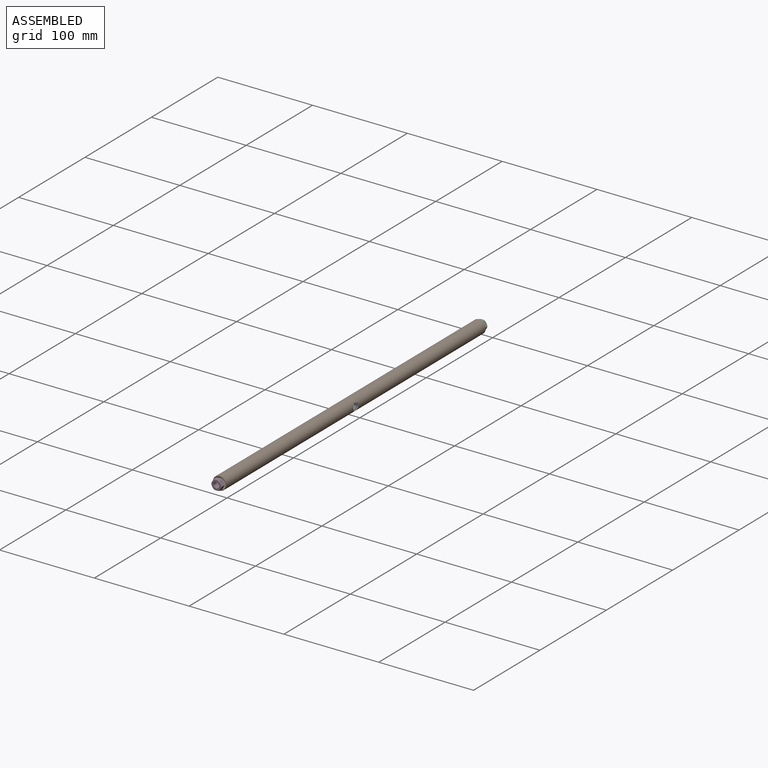
[diagram: assembled view]
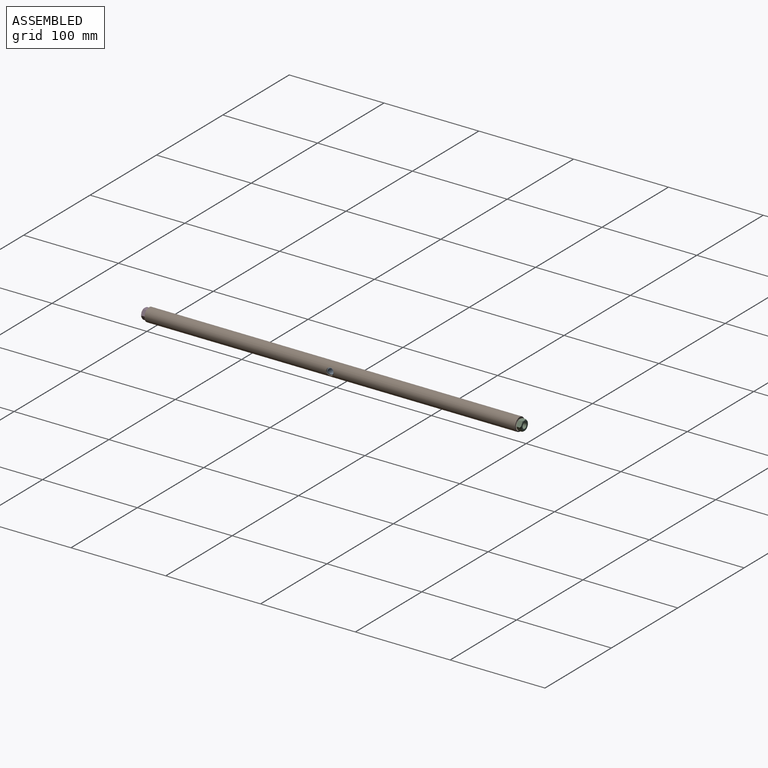
[diagram: assembled view, second angle]
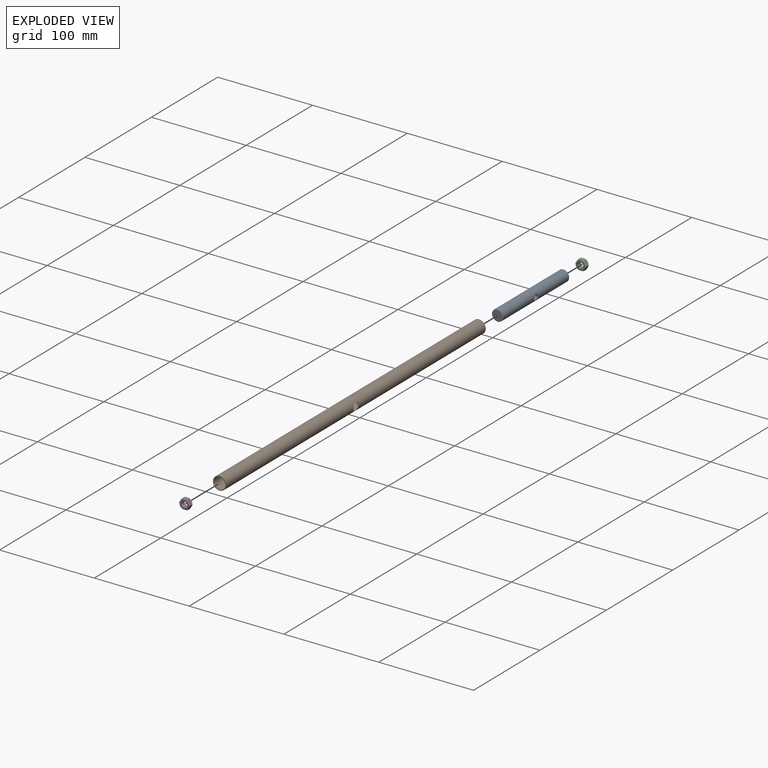
[diagram: exploded view]
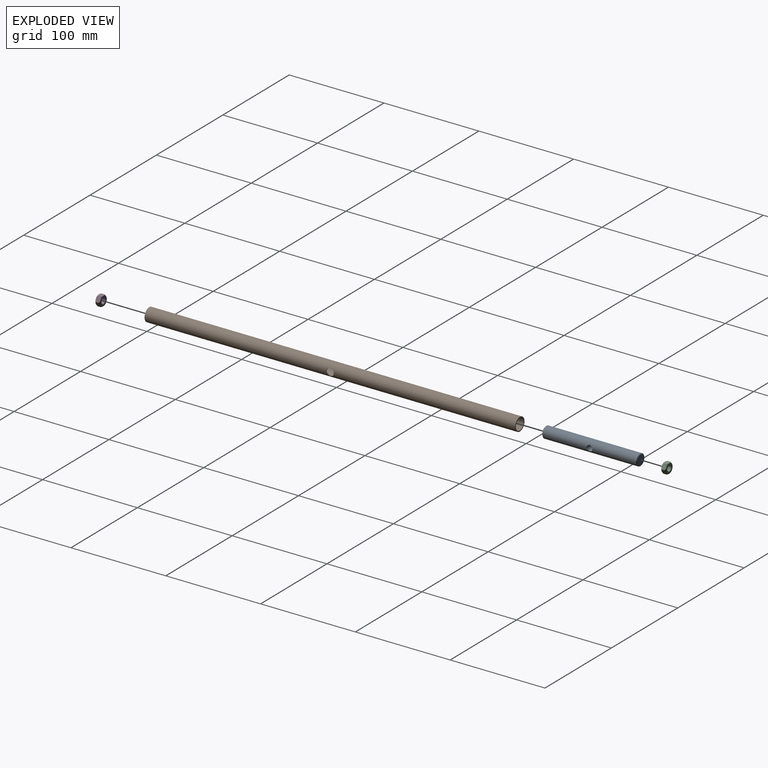
[diagram: exploded view, second angle]
ASSEMBLY  parts=4 mates=3
PART A: 6 faces, bbox 12x100x12 mm
  f0: cylinder r=6mm len=99mm, axis (0,1,0), area 3673.6mm2, adj f3,f4,f5
  f1: plane 11x11mm, normal (0,-1,0), area 95mm2, adj f5
  f2: plane 11x11mm, normal (0,1,0), area 95mm2, adj f4
  f3: cylinder r=3mm len=12mm, axis (1,0,0), area 211.3mm2, adj f0
  f4: cone r=6mm half-angle=45deg, axis (0,-1,0), area 25.5mm2, adj f0,f2
  f5: cone r=5.5mm half-angle=45deg, axis (0,1,0), area 25.5mm2, adj f0,f1
PART B: 6 faces, bbox 14x391x14 mm
  f0: cylinder r=6mm len=391mm, axis (0,1,0), area 14633mm2, adj f2,f3,f4,f5
  f1: cylinder r=7mm len=391mm, axis (0,1,0), area 17091.9mm2, adj f2,f3,f4,f5
  f2: plane 14x14mm, normal (0,-1,0), area 40.8mm2, adj f0,f1
  f3: plane 14x14mm, normal (0,1,0), area 40.8mm2, adj f0,f1
  f4: cylinder r=4mm len=8mm, axis (1,0,0), area 28.2mm2, adj f0,f1
  f5: cylinder r=4mm len=8mm, axis (1,0,0), area 28.3mm2, adj f0,f1
PART C: 21 faces, bbox 12.1x5.6x12.1 mm
  f0: plane 10x10mm, normal (0,1,0), area 50.3mm2, adj f1,f2,f3,f4,f5,f6,f7
  f1: cone r=5mm half-angle=45deg, axis (0,-1,0), area 3mm2, adj f0,f19,f20
  f2: cone r=5mm half-angle=45deg, axis (0,-1,0), area 3mm2, adj f0,f15,f20
  f3: cone r=5mm half-angle=45deg, axis (0,-1,0), area 3mm2, adj f0,f15,f16
  f4: cone r=5mm half-angle=45deg, axis (0,-1,0), area 3mm2, adj f0,f16,f17
  f5: cone r=5mm half-angle=45deg, axis (0,-1,0), area 3mm2, adj f0,f17,f18
  f6: cone r=5mm half-angle=45deg, axis (0,-1,0), area 3mm2, adj f0,f18,f19
  f7: cylinder r=3mm len=6mm, axis (0,-1,0), area 94.2mm2, adj f0,f8
  f8: plane 10x10mm, normal (0,-1,0), area 50.3mm2, adj f7,f9,f10,f11,f12,f13,f14
  f9: cone r=5mm half-angle=45deg, axis (0,1,0), area 3mm2, adj f8,f18,f19
  f10: cone r=5mm half-angle=45deg, axis (0,1,0), area 3mm2, adj f8,f17,f18
  f11: cone r=5mm half-angle=45deg, axis (0,1,0), area 3mm2, adj f8,f16,f17
  f12: cone r=5mm half-angle=45deg, axis (0,1,0), area 3mm2, adj f8,f15,f16
  f13: cone r=5mm half-angle=45deg, axis (0,1,0), area 3mm2, adj f8,f15,f20
  f14: cone r=5mm half-angle=45deg, axis (0,1,0), area 3mm2, adj f8,f19,f20
  f15: plane 5.58x5.56mm, normal (0.87,0,0.5), area 25.8mm2, adj f2,f3,f12,f13,f16,f20
  f16: plane 6.34x5.57mm, normal (0,0,1), area 25.8mm2, adj f3,f4,f11,f12,f15,f17
  f17: plane 5.58x5.56mm, normal (-0.87,0,0.5), area 25.8mm2, adj f4,f5,f10,f11,f16,f18
  f18: plane 5.58x5.56mm, normal (-0.87,0,-0.5), area 25.8mm2, adj f5,f6,f9,f10,f17,f19
  f19: plane 6.34x5.57mm, normal (0,0,-1), area 25.8mm2, adj f1,f6,f9,f14,f18,f20
  f20: plane 5.58x5.56mm, normal (0.87,0,-0.5), area 25.8mm2, adj f1,f2,f13,f14,f15,f19
PART D: same geometry as C
PLACE A t=(-106.46,-106.57,-67.67)mm
PLACE B t=(-106.46,88.93,-67.67)mm
PLACE C rot(axis=(1,0,0),180deg) t=(-106.46,88.93,-67.67)mm
PLACE D t=(-106.46,-302.07,-67.67)mm
MATE fastened C.f1 <-> B.f0  axis (0,-1,0) through (-106.46,88.93,-67.67)mm
MATE fastened A.f0 <-> B.f0  axis (0,-1,0) through (-106.46,-156.57,-67.67)mm
MATE fastened D.f1 <-> B.f0  axis (0,1,0) through (-106.46,-302.07,-67.67)mm
